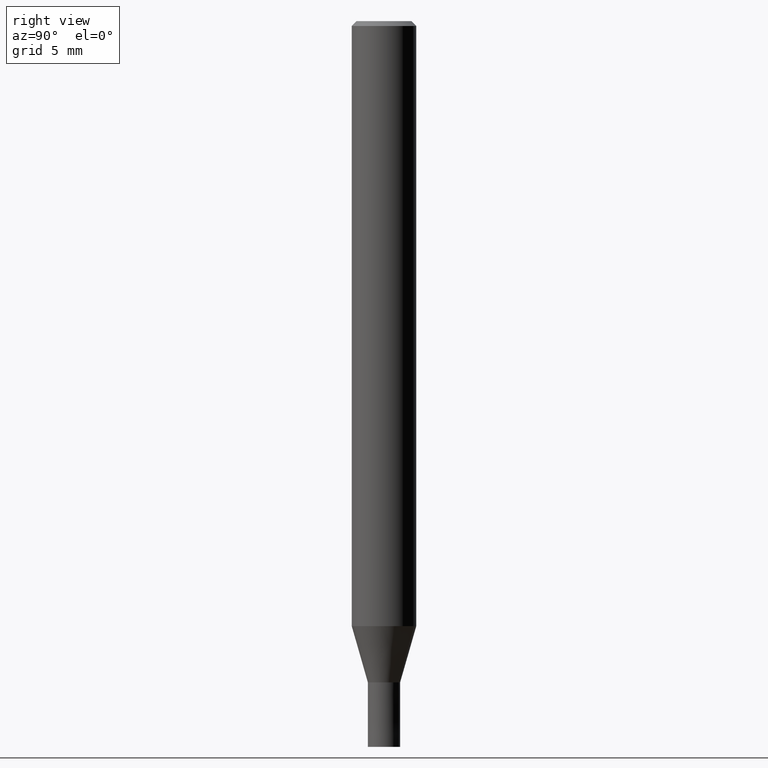
[diagram: clean part render]
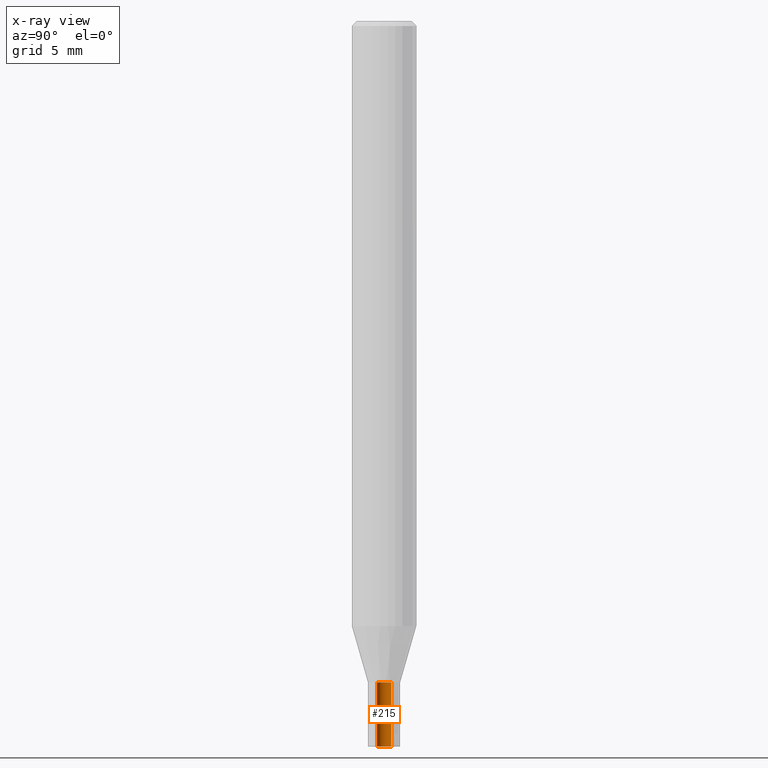
[diagram: x-ray — body ghosted, one internal face saturated and labeled with its STEP entity id]
A machine part, right view, then the same camera in x-ray: the body is ghosted and one INTERNAL B-rep face — a face not visible from any outside direction — is saturated and labeled: STEP entity #215.
In plain terms, the highlighted cylindrical surface (edge-blend (fillet) strip) has radius 0.45 mm, axis along (-0, -0, 1).
Its self-contained STEP definition (entity closure, byte-faithful):
#109=EDGE_CURVE('',#213,#193,#280,.T.);
#173=EDGE_CURVE('',#211,#193,#352,.T.);
#193=VERTEX_POINT('',#377);
#211=VERTEX_POINT('',#396);
#213=VERTEX_POINT('',#398);
#215=ADVANCED_FACE('',(#400),#401,.F.);
#227=EDGE_CURVE('',#257,#213,#413,.T.);
#253=EDGE_CURVE('',#211,#257,#445,.T.);
#257=VERTEX_POINT('',#450);
#280=LINE('',#466,#467);
#352=CIRCLE('',#556,0.45);
#377=CARTESIAN_POINT('',(0.0,0.45,-45.0));
#396=CARTESIAN_POINT('',(5.5107285922007E-017,-0.45,-45.0));
#398=CARTESIAN_POINT('',(0.0,0.45,-41.0));
#400=FACE_OUTER_BOUND('',#617,.T.);
#401=CYLINDRICAL_SURFACE('',#618,0.45);
#413=CIRCLE('',#636,0.45);
#445=LINE('',#673,#674);
#450=CARTESIAN_POINT('',(5.5107285922007E-017,-0.45,-41.0));
#466=CARTESIAN_POINT('',(-5.5107285922007E-017,0.45,-43.0));
#467=VECTOR('',#683,1.0);
#556=AXIS2_PLACEMENT_3D('',#772,#773,#774);
#617=EDGE_LOOP('',(#826,#827,#828,#829));
#618=AXIS2_PLACEMENT_3D('',#830,#831,#832);
#636=AXIS2_PLACEMENT_3D('',#843,#844,#845);
#673=CARTESIAN_POINT('',(5.5107285922007E-017,-0.45,-43.0));
#674=VECTOR('',#894,1.0);
#683=DIRECTION('',(0.0,-0.0,-1.0));
#772=CARTESIAN_POINT('',(0.0,0.0,-45.0));
#773=DIRECTION('',(0.0,0.0,-1.0));
#774=DIRECTION('',(0.0,1.0,0.0));
#826=ORIENTED_EDGE('',*,*,#109,.F.);
#827=ORIENTED_EDGE('',*,*,#227,.F.);
#828=ORIENTED_EDGE('',*,*,#253,.F.);
#829=ORIENTED_EDGE('',*,*,#173,.T.);
#830=CARTESIAN_POINT('',(0.0,0.0,-43.0));
#831=DIRECTION('',(-0.0,-0.0,1.0));
#832=DIRECTION('',(0.0,1.0,0.0));
#843=CARTESIAN_POINT('',(0.0,0.0,-41.0));
#844=DIRECTION('',(0.0,0.0,-1.0));
#845=DIRECTION('',(0.0,1.0,0.0));
#894=DIRECTION('',(0.0,-0.0,1.0));